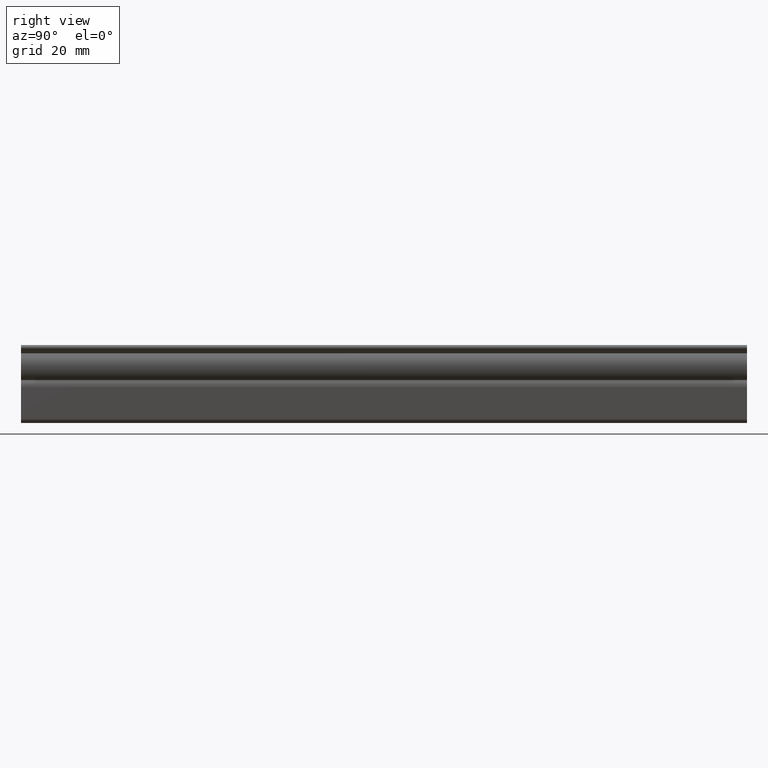
[diagram: clean part render]
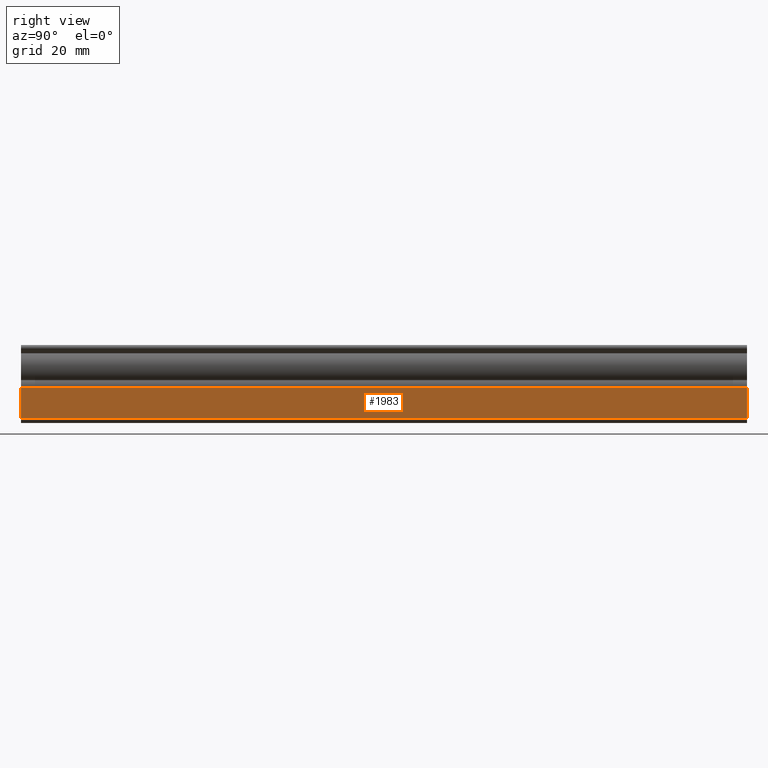
[diagram: same view with one face highlighted and labeled with its STEP entity id]
A machine part, right view. The second image highlights one B-rep face of the part: STEP entity #1983.
In plain terms, the highlighted face is a freeform B-spline surface patch.
Its self-contained STEP definition (entity closure, byte-faithful):
#362=CARTESIAN_POINT('',(4.246288446912500,0.0,-20.321768259748499));
#363=VERTEX_POINT('',#362);
#379=CARTESIAN_POINT('',(4.746288446912381,0.0,-11.627548625367680));
#380=VERTEX_POINT('',#379);
#381=CARTESIAN_POINT('',(4.746288446912381,0.0,-11.627548625367680));
#382=CARTESIAN_POINT('',(4.246288446912500,0.0,-20.321768259748499));
#383=QUASI_UNIFORM_CURVE('',1,(#381,#382),.UNSPECIFIED.,.F.,.U.);
#384=EDGE_CURVE('',#380,#363,#383,.T.);
#1038=CARTESIAN_POINT('',(4.746288446912381,200.0,-11.627548625367680));
#1039=VERTEX_POINT('',#1038);
#1053=CARTESIAN_POINT('',(4.246288446912500,200.0,-20.321768259748499));
#1054=VERTEX_POINT('',#1053);
#1055=CARTESIAN_POINT('',(4.746288446912381,200.0,-11.627548625367680));
#1056=CARTESIAN_POINT('',(4.246288446912500,200.0,-20.321768259748499));
#1057=QUASI_UNIFORM_CURVE('',1,(#1055,#1056),.UNSPECIFIED.,.F.,.U.);
#1058=EDGE_CURVE('',#1039,#1054,#1057,.T.);
#1960=CARTESIAN_POINT('',(4.246288446912500,200.0,-20.321768259748499));
#1961=CARTESIAN_POINT('',(4.246288446912500,0.0,-20.321768259748499));
#1962=QUASI_UNIFORM_CURVE('',1,(#1960,#1961),.UNSPECIFIED.,.F.,.U.);
#1963=EDGE_CURVE('',#1054,#363,#1962,.T.);
#1968=CARTESIAN_POINT('',(4.221313471349816,-9.989999612361194,-20.756044105559180));
#1969=CARTESIAN_POINT('',(4.771263458237832,-9.989999612361194,-11.193272157697960));
#1970=CARTESIAN_POINT('',(4.221313471349816,209.990004976779200,-20.756044105559180));
#1971=CARTESIAN_POINT('',(4.771263458237832,209.990004976779200,-11.193272157697960));
#1972=B_SPLINE_SURFACE_WITH_KNOTS('',1,1,((#1968,#1970),(#1969,#1971)),.UNSPECIFIED.,.F.,.F.,.U.,(2,2),(2,2),(0.0,9.578572561445654),(0.0,219.980004589140410),.UNSPECIFIED.);
#1973=ORIENTED_EDGE('',*,*,#384,.T.);
#1974=ORIENTED_EDGE('',*,*,#1963,.F.);
#1975=ORIENTED_EDGE('',*,*,#1058,.F.);
#1976=CARTESIAN_POINT('',(4.746288446912381,200.0,-11.627548625367680));
#1977=CARTESIAN_POINT('',(4.746288446912381,0.0,-11.627548625367680));
#1978=QUASI_UNIFORM_CURVE('',1,(#1976,#1977),.UNSPECIFIED.,.F.,.U.);
#1979=EDGE_CURVE('',#1039,#380,#1978,.T.);
#1980=ORIENTED_EDGE('',*,*,#1979,.T.);
#1981=EDGE_LOOP('',(#1973,#1974,#1975,#1980));
#1982=FACE_OUTER_BOUND('',#1981,.T.);
#1983=ADVANCED_FACE('',(#1982),#1972,.F.);